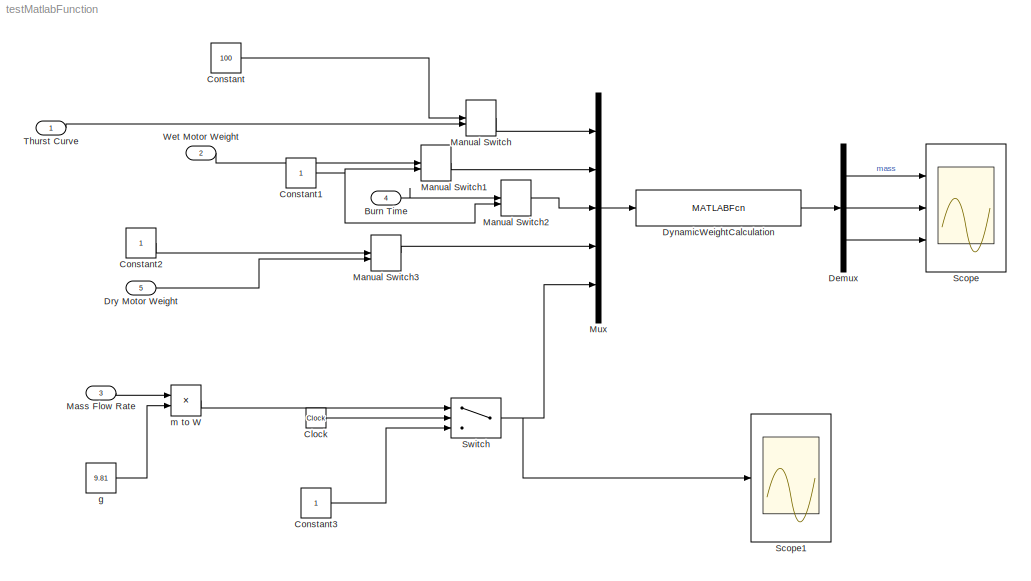
MODEL testMatlabFunction
KIND model
BLOCK [Inport] Burn Time
  IconDisplay = Port number
  Port = 4
  SID = 10
BLOCK [Clock] Clock
  SID = 27
BLOCK [Constant] Constant
  SID = 17
  Value = 100
BLOCK [Constant] Constant1
  SID = 23
BLOCK [Constant] Constant2
  SID = 25
BLOCK [Constant] Constant3
  SID = 26
BLOCK [Demux] Demux
  DisplayOption = bar
  Outputs = [1 1 1]
  Ports = [1, 3]
  SID = 15
BLOCK [Inport] Dry Motor Weight
  IconDisplay = Port number
  Port = 5
  SID = 11
BLOCK [MATLABFcn] DynamicWeightCalculation
  MATLABFcn = DynamicWeightCalculation
  Ports = [1, 1]
  SID = 6
BLOCK [ManualSwitch] Manual Switch
  SID = 18
BLOCK [ManualSwitch] Manual Switch1
  CurrentSetting = 0
  SID = 19
BLOCK [ManualSwitch] Manual Switch2
  CurrentSetting = 0
  SID = 20
BLOCK [ManualSwitch] Manual Switch3
  SID = 21
BLOCK [Inport] Mass Flow Rate
  IconDisplay = Port number
  Port = 3
  SID = 9
BLOCK [Mux] Mux
  DisplayOption = bar
  Inputs = 5
  Ports = [5, 1]
  SID = 14
BLOCK [Scope] Scope
  Floating = off
  NumInputPorts = 3
  Ports = [3]
  SID = 28
  ShowLegends = off
  YMax = 5~5~5
  YMin = -5~-5~-5
  ZoomMode = yonly
BLOCK [Scope] Scope1
  Floating = off
  NumInputPorts = 1
  Ports = [1]
  SID = 29
  SaveName = ScopeData1
  ShowLegends = off
  ZoomMode = yonly
BLOCK [Switch] Switch
  Criteria = u2 > Threshold
  InputSameDT = off
  SID = 24
  SaturateOnIntegerOverflow = off
  Threshold = 10
BLOCK [Inport] Thurst Curve
  IconDisplay = Port number
  SID = 7
BLOCK [Inport] Wet Motor Weight
  IconDisplay = Port number
  Port = 2
  SID = 8
BLOCK [Constant] g
  SID = 12
  Value = 9.81
BLOCK [Product] m to W
  InputSameDT = off
  OutDataTypeStr = Inherit: Inherit via internal rule
  Ports = [2, 1]
  RndMeth = Floor
  SID = 13
  SaturateOnIntegerOverflow = off
LINE Burn Time:1 -> Manual Switch2:1
LINE Clock:1 -> Switch:2
NET Constant1:1 -> Manual Switch1:2, Manual Switch2:2
LINE Constant2:1 -> Manual Switch3:1
LINE Constant3:1 -> Switch:3
LINE Constant:1 -> Manual Switch:1
LINE Demux:1 -> Scope:1
LINE Demux:2 -> Scope:2
LINE Demux:3 -> Scope:3
LINE Dry Motor Weight:1 -> Manual Switch3:2
LINE DynamicWeightCalculation:1 -> Demux:1
LINE Manual Switch1:1 -> Mux:2
LINE Manual Switch2:1 -> Mux:3
LINE Manual Switch3:1 -> Mux:4
LINE Manual Switch:1 -> Mux:1
LINE Mass Flow Rate:1 -> m to W:1
LINE Mux:1 -> DynamicWeightCalculation:1
NET Switch:1 -> Mux:5, Scope1:1
LINE Thurst Curve:1 -> Manual Switch:2
LINE Wet Motor Weight:1 -> Manual Switch1:1
LINE g:1 -> m to W:2
LINE m to W:1 -> Switch:1
note: NET lines group one-source signal fan-out (src -> all destinations, sorted); 1:1 wires keep LINE
